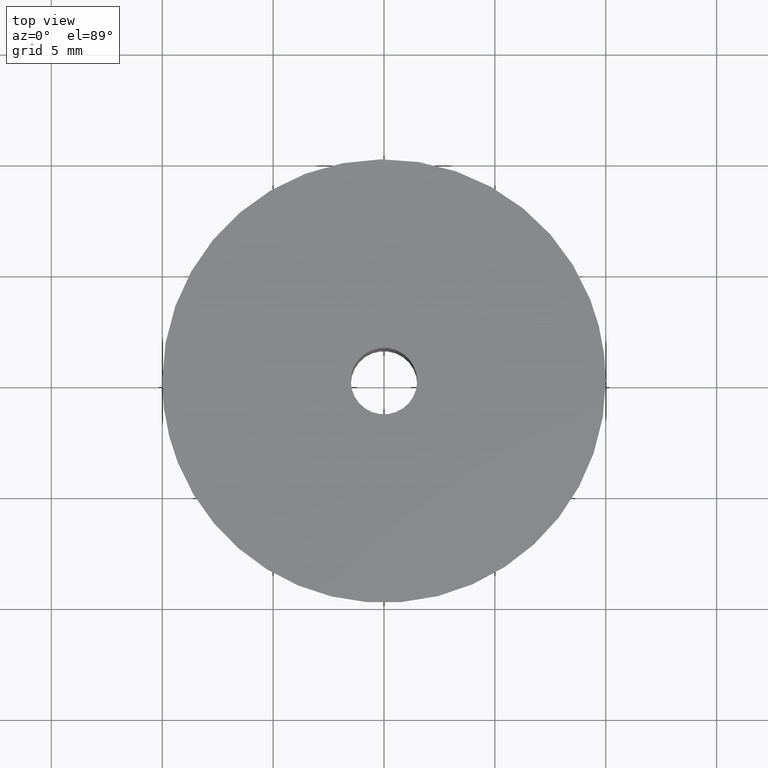
[diagram: clean part render]
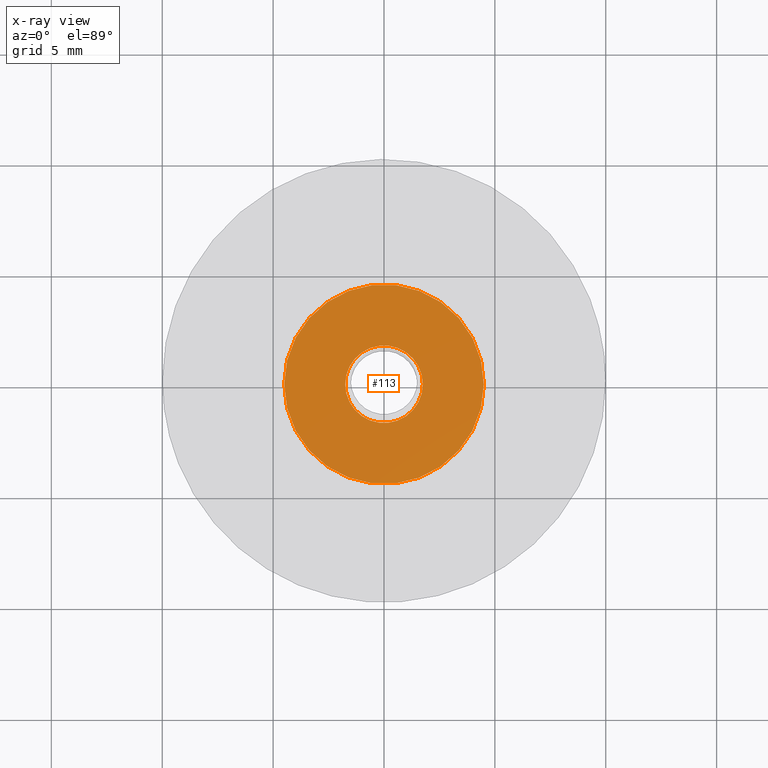
[diagram: x-ray — body ghosted, one internal face saturated and labeled with its STEP entity id]
A machine part, top view, then the same camera in x-ray: the body is ghosted and one INTERNAL B-rep face — a face not visible from any outside direction — is saturated and labeled: STEP entity #113.
In plain terms, the highlighted planar face has unit normal (0, 0, -1).
Its self-contained STEP definition (entity closure, byte-faithful):
#113=ADVANCED_FACE('',(#147,#148),#146,.F.);
#146=PLANE('',#381);
#147=FACE_OUTER_BOUND('',#382,.T.);
#148=FACE_BOUND('',#383,.T.);
#378=CARTESIAN_POINT('',(1.03500000000E+001,-9.35307436086E+000,8.50000000000E+000));
#379=DIRECTION('',(0.00000000000E+000,0.00000000000E+000,-1.00000000000E+000));
#380=DIRECTION('',(-1.00000000000E+000,0.00000000000E+000,0.00000000000E+000));
#381=AXIS2_PLACEMENT_3D('',#378,#379,#380);
#382=EDGE_LOOP('',(#554,#555,#556));
#383=EDGE_LOOP('',(#557,#558,#559));
#554=ORIENTED_EDGE('',*,*,#690,.F.);
#555=ORIENTED_EDGE('',*,*,#691,.F.);
#556=ORIENTED_EDGE('',*,*,#692,.F.);
#557=ORIENTED_EDGE('',*,*,#693,.T.);
#558=ORIENTED_EDGE('',*,*,#694,.T.);
#559=ORIENTED_EDGE('',*,*,#695,.T.);
#690=EDGE_CURVE('',#794,#795,#796,.T.);
#691=EDGE_CURVE('',#802,#794,#803,.T.);
#692=EDGE_CURVE('',#795,#802,#809,.T.);
#693=EDGE_CURVE('',#815,#816,#817,.T.);
#694=EDGE_CURVE('',#816,#823,#824,.T.);
#695=EDGE_CURVE('',#823,#815,#830,.T.);
#794=VERTEX_POINT('',#1242);
#795=VERTEX_POINT('',#1243);
#796=CIRCLE('',#1247,4.49999999999E+000);
#802=VERTEX_POINT('',#1248);
#803=CIRCLE('',#1252,4.49999999999E+000);
#809=CIRCLE('',#1256,4.49999999999E+000);
#815=VERTEX_POINT('',#1257);
#816=VERTEX_POINT('',#1258);
#817=CIRCLE('',#1262,1.75000000001E+000);
#823=VERTEX_POINT('',#1263);
#824=CIRCLE('',#1267,1.75000000001E+000);
#830=CIRCLE('',#1271,1.75000000001E+000);
#1242=CARTESIAN_POINT('',(5.31151701545E-001,-4.46854314848E+000,8.50000000000E+000));
#1243=CARTESIAN_POINT('',(-4.49999999999E+000,-2.44249065418E-015,8.50000000000E+000));
#1244=CARTESIAN_POINT('',(6.50568487970E-012,2.95452551313E-012,8.50000000000E+000));
#1245=DIRECTION('',(-1.06712898677E-014,-1.26842953063E-015,-1.00000000000E+000));
#1246=DIRECTION('',(-1.00000000000E+000,-6.56738552429E-013,1.06712898677E-014));
#1247=AXIS2_PLACEMENT_3D('',#1244,#1245,#1246);
#1248=CARTESIAN_POINT('',(-5.31924016203E-001,4.46845127991E+000,8.50000000000E+000));
#1249=CARTESIAN_POINT('',(6.50568487970E-012,2.95452551313E-012,8.50000000000E+000));
#1250=DIRECTION('',(-1.06712898677E-014,-1.26842953063E-015,-1.00000000000E+000));
#1251=DIRECTION('',(-1.00000000000E+000,-6.56738552429E-013,1.06712898677E-014));
#1252=AXIS2_PLACEMENT_3D('',#1249,#1250,#1251);
#1253=CARTESIAN_POINT('',(6.50568487970E-012,2.95452551313E-012,8.50000000000E+000));
#1254=DIRECTION('',(-1.06712898677E-014,-1.26842953063E-015,-1.00000000000E+000));
#1255=DIRECTION('',(-1.00000000000E+000,-6.56738552429E-013,1.06712898677E-014));
#1256=AXIS2_PLACEMENT_3D('',#1253,#1254,#1255);
#1257=CARTESIAN_POINT('',(-1.75000000002E+000,-1.03283945385E-016,8.50000000000E+000));
#1258=CARTESIAN_POINT('',(-2.06860317407E-001,1.73773093693E+000,8.50000000000E+000));
#1259=CARTESIAN_POINT('',(-1.12443387934E-011,1.05775388448E-011,8.50000000000E+000));
#1260=DIRECTION('',(3.04518315323E-015,-1.43551310508E-015,-1.00000000000E+000));
#1261=DIRECTION('',(-1.00000000000E+000,-6.04380038084E-012,-3.04518315322E-015));
#1262=AXIS2_PLACEMENT_3D('',#1259,#1260,#1261);
#1263=CARTESIAN_POINT('',(2.06559275158E-001,-1.73776674667E+000,8.50000000000E+000));
#1264=CARTESIAN_POINT('',(-1.12443387934E-011,1.05775388448E-011,8.50000000000E+000));
#1265=DIRECTION('',(3.04518315323E-015,-1.43551310508E-015,-1.00000000000E+000));
#1266=DIRECTION('',(-1.00000000000E+000,-6.04380038084E-012,-3.04518315322E-015));
#1267=AXIS2_PLACEMENT_3D('',#1264,#1265,#1266);
#1268=CARTESIAN_POINT('',(-1.12443387934E-011,1.05775388448E-011,8.50000000000E+000));
#1269=DIRECTION('',(3.04518315323E-015,-1.43551310508E-015,-1.00000000000E+000));
#1270=DIRECTION('',(-1.00000000000E+000,-6.04380038084E-012,-3.04518315322E-015));
#1271=AXIS2_PLACEMENT_3D('',#1268,#1269,#1270);